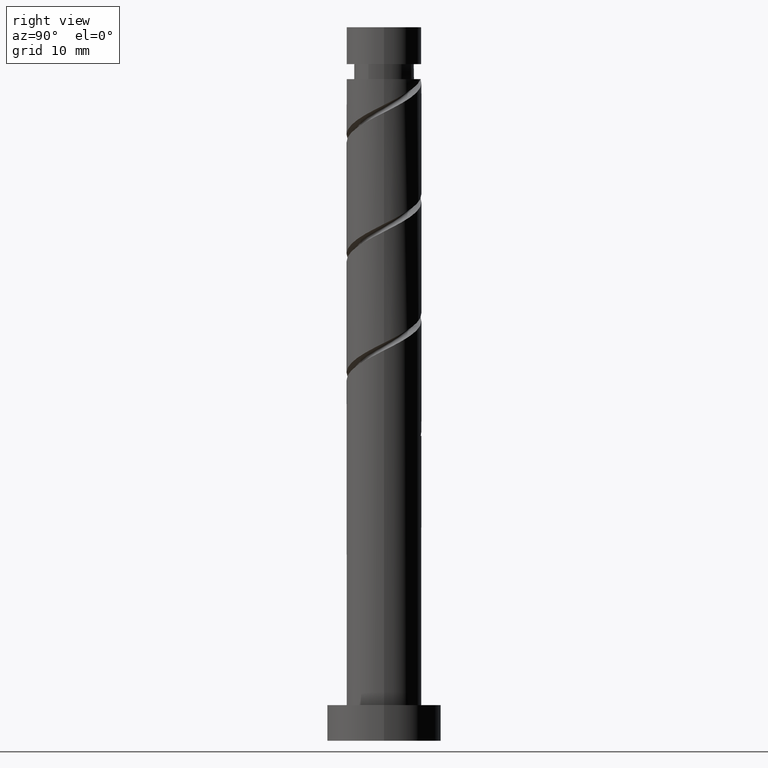
[diagram: clean part render]
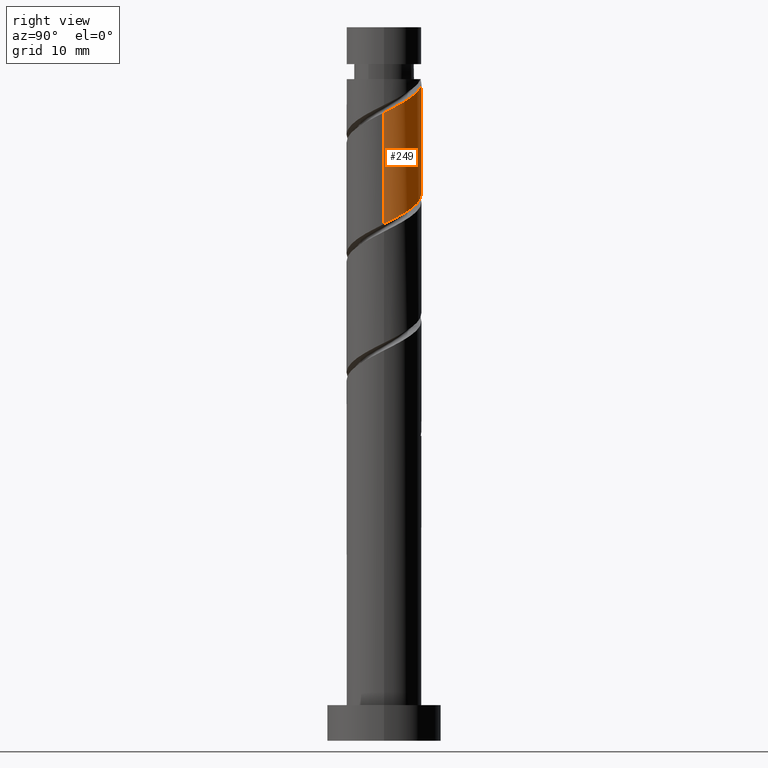
[diagram: same view with one face highlighted and labeled with its STEP entity id]
A machine part, right view. The second image highlights one B-rep face of the part: STEP entity #249.
In plain terms, the highlighted cylindrical surface (partial cylindrical patch) has radius 5.25 mm, axis along (-0, -0, -1).
Its self-contained STEP definition (entity closure, byte-faithful):
#27 = CARTESIAN_POINT ( 'NONE',  ( -5.250000000000000000, 0.000000000000000000, 100.0000000000000000 ) ) ;
#63 = AXIS2_PLACEMENT_3D ( 'NONE', #753, #978, #196 ) ;
#105 = CARTESIAN_POINT ( 'NONE',  ( 5.248252532265624382, 0.1354450352266066693, 88.10520114335645303 ) ) ;
#192 = EDGE_LOOP ( 'NONE', ( #432, #957, #760, #750, #459 ) ) ;
#196 = DIRECTION ( 'NONE',  ( -1.000000000000000000, 0.000000000000000000, 0.000000000000000000 ) ) ;
#198 = VERTEX_POINT ( 'NONE', #935 ) ;
#214 = CARTESIAN_POINT ( 'NONE',  ( -5.248252532265617276, 0.1354450352266073354, 80.69779373594903404 ) ) ;
#221 = VERTEX_POINT ( 'NONE', #712 ) ;
#245 = VERTEX_POINT ( 'NONE', #627 ) ;
#247 = CARTESIAN_POINT ( 'NONE',  ( 1.044736808961952423, 5.145000000000001350, 76.06816410631940073 ) ) ;
#249 = ADVANCED_FACE ( 'NONE', ( #929 ), #379, .T. ) ;
#259 = DIRECTION ( 'NONE',  ( -0.000000000000000000, -0.000000000000000000, -1.000000000000000000 ) ) ;
#285 = CARTESIAN_POINT ( 'NONE',  ( 5.250000000000000000, 6.429395695523604153E-16, 100.0000000000000000 ) ) ;
#291 =( BOUNDED_CURVE ( )  B_SPLINE_CURVE ( 2, ( #767, #328, #214, #1121, #563, #997, #441, #777, #1240, #1258, #1145, #1390, #247, #893, #595, #581, #444, #1299, #1185, #631, #515 ),
 .UNSPECIFIED., .F., .T. ) 
 B_SPLINE_CURVE_WITH_KNOTS ( ( 3, 2, 2, 2, 2, 2, 2, 2, 2, 2, 3 ),
 ( 0.4295248053855290626, 0.4305555555555555802, 0.4444444444444444198, 0.4583333333333333148, 0.4722222222222222099, 0.4861111111111111049, 0.5000000000000000000, 0.5138888888888888395, 0.5277777777777777901, 0.5416666666666666297, 0.5545248053855290626 ),
 .UNSPECIFIED. ) 
 CURVE ( )  GEOMETRIC_REPRESENTATION_ITEM ( )  RATIONAL_B_SPLINE_CURVE ( ( 0.9071930855141207006, 0.9080659294509683122, 0.9090909090909083945, 0.8952797754656429685, 0.9090909090909083945, 0.8952797754656429685, 0.9090909090909083945, 0.8952797754656429685, 0.9090909090909083945, 0.8952797754656429685, 0.9090909090909083945, 0.8952797754656429685, 0.9090909090909083945, 0.8952797754656429685, 0.9090909090909083945, 0.8952797754656429685, 0.9090909090909083945, 0.8952797754656429685, 0.9090909090909083945, 0.8963047551055830509, 0.9071930855141207006 ) ) 
 REPRESENTATION_ITEM ( '' )  );
#328 = CARTESIAN_POINT ( 'NONE',  ( -5.250000000000000888, 0.06773379024310967333, 80.73166828737579692 ) ) ;
#379 = CYLINDRICAL_SURFACE ( 'NONE', #1272, 5.250000000000000000 ) ;
#401 = EDGE_CURVE ( 'NONE', #1312, #1357, #1374, .T. ) ;
#432 = ORIENTED_EDGE ( 'NONE', *, *, #713, .F. ) ;
#437 = CARTESIAN_POINT ( 'NONE',  ( 1.693458827948110423, 5.054863847005282018, 91.34594188409721482 ) ) ;
#441 = CARTESIAN_POINT ( 'NONE',  ( -3.933332297989960757, 3.477268616829741088, 78.84594188409717219 ) ) ;
#444 = CARTESIAN_POINT ( 'NONE',  ( 4.107457078864401367, 3.269754783662944586, 74.21631225446756730 ) ) ;
#459 = ORIENTED_EDGE ( 'NONE', *, *, #401, .T. ) ;
#470 = CARTESIAN_POINT ( 'NONE',  ( 4.546468574307857224, 2.783716008602082681, 89.49409003224535297 ) ) ;
#493 = LINE ( 'NONE', #285, #675 ) ;
#515 = CARTESIAN_POINT ( 'NONE',  ( 5.250000000000001776, 6.722534946102204886E-17, 72.43235232797486844 ) ) ;
#563 = CARTESIAN_POINT ( 'NONE',  ( -4.885419246230004120, 1.922284783419320853, 79.77186781002311022 ) ) ;
#576 = CARTESIAN_POINT ( 'NONE',  ( 5.224369918152165226, 1.060853558236559024, 88.56816410631944336 ) ) ;
#581 = CARTESIAN_POINT ( 'NONE',  ( 3.530911090204056801, 3.994010288768715000, 74.67927521743055763 ) ) ;
#595 = CARTESIAN_POINT ( 'NONE',  ( 2.741425107455532029, 4.477397500804728203, 75.14223818039347691 ) ) ;
#627 = CARTESIAN_POINT ( 'NONE',  ( -5.250000000000000888, -2.674075011893987949E-15, 80.76568566130816862 ) ) ;
#631 = CARTESIAN_POINT ( 'NONE',  ( 5.250000000000000000, 0.8560354520573941750, 72.86227184034048321 ) ) ;
#675 = VECTOR ( 'NONE', #259, 1000.000000000000000 ) ;
#684 = EDGE_CURVE ( 'NONE', #221, #198, #493, .T. ) ;
#685 = CARTESIAN_POINT ( 'NONE',  ( 4.885419246230010337, 1.922284783419320631, 89.03112706928240527 ) ) ;
#690 =( BOUNDED_CURVE ( )  B_SPLINE_CURVE ( 2, ( #993, #781, #105, #576, #685, #470, #1146, #1480, #1242, #437, #1487, #1351, #763 ),
 .UNSPECIFIED., .F., .T. ) 
 B_SPLINE_CURVE_WITH_KNOTS ( ( 3, 2, 2, 2, 2, 2, 3 ),
 ( 0.6795248053855290626, 0.6805555555555555802, 0.6944444444444444198, 0.7083333333333332593, 0.7222222222222222099, 0.7361111111111111605, 0.7500000000000000000 ),
 .UNSPECIFIED. ) 
 CURVE ( )  GEOMETRIC_REPRESENTATION_ITEM ( )  RATIONAL_B_SPLINE_CURVE ( ( 0.9071930855141258077, 0.9080659294509735302, 0.9090909090909136125, 0.8952797754656481866, 0.9090909090909136125, 0.8952797754656481866, 0.9090909090909136125, 0.8952797754656481866, 0.9090909090909136125, 0.8952797754656481866, 0.9090909090909136125, 0.8952797754656481866, 0.9090909090909136125 ) ) 
 REPRESENTATION_ITEM ( '' )  );
#712 = CARTESIAN_POINT ( 'NONE',  ( 5.250000000000007105, 3.286572640316614447E-15, 88.03730921799733267 ) ) ;
#713 = EDGE_CURVE ( 'NONE', #221, #1357, #690, .T. ) ;
#719 = DIRECTION ( 'NONE',  ( -0.000000000000000000, -0.000000000000000000, -1.000000000000000000 ) ) ;
#728 = DIRECTION ( 'NONE',  ( -0.000000000000000000, -0.000000000000000000, -1.000000000000000000 ) ) ;
#750 = ORIENTED_EDGE ( 'NONE', *, *, #844, .F. ) ;
#753 = CARTESIAN_POINT ( 'NONE',  ( 0.000000000000000000, 0.000000000000000000, 92.73483077298610056 ) ) ;
#760 = ORIENTED_EDGE ( 'NONE', *, *, #1481, .F. ) ;
#763 = CARTESIAN_POINT ( 'NONE',  ( -1.044736808961951091, 5.145000000000009344, 92.73483077298611477 ) ) ;
#767 = CARTESIAN_POINT ( 'NONE',  ( -5.250000000000000888, -2.674075011893987949E-15, 80.76568566130816862 ) ) ;
#777 = CARTESIAN_POINT ( 'NONE',  ( -3.320196021672073616, 4.170821225057396830, 78.38297892113425291 ) ) ;
#781 = CARTESIAN_POINT ( 'NONE',  ( 5.250000000000007105, 0.06773379024310845209, 88.07132659192970436 ) ) ;
#844 = EDGE_CURVE ( 'NONE', #1312, #245, #1186, .T. ) ;
#893 = CARTESIAN_POINT ( 'NONE',  ( 1.951939124707003925, 4.960784712840743182, 75.60520114335648145 ) ) ;
#929 = FACE_OUTER_BOUND ( 'NONE', #192, .T. ) ;
#935 = CARTESIAN_POINT ( 'NONE',  ( 5.250000000000001776, 6.722534946102204886E-17, 72.43235232797486844 ) ) ;
#957 = ORIENTED_EDGE ( 'NONE', *, *, #684, .T. ) ;
#978 = DIRECTION ( 'NONE',  ( -0.000000000000000000, -0.000000000000000000, -1.000000000000000000 ) ) ;
#993 = CARTESIAN_POINT ( 'NONE',  ( 5.250000000000007105, 3.286572640316614447E-15, 88.03730921799733267 ) ) ;
#997 = CARTESIAN_POINT ( 'NONE',  ( -4.546468574307849231, 2.783716008602082237, 79.30890484706019095 ) ) ;
#1047 = CARTESIAN_POINT ( 'NONE',  ( 0.000000000000000000, 0.000000000000000000, 100.0000000000000000 ) ) ;
#1065 = DIRECTION ( 'NONE',  ( -1.000000000000000000, 0.000000000000000000, 0.000000000000000000 ) ) ;
#1074 = CARTESIAN_POINT ( 'NONE',  ( -5.250000000000000888, 0.000000000000000000, 92.73483077298610056 ) ) ;
#1077 = VECTOR ( 'NONE', #728, 1000.000000000000000 ) ;
#1121 = CARTESIAN_POINT ( 'NONE',  ( -5.224369918152159009, 1.060853558236559691, 80.23483077298611477 ) ) ;
#1145 = CARTESIAN_POINT ( 'NONE',  ( -0.7779621673656025305, 5.192039567082266771, 76.99409003224536718 ) ) ;
#1146 = CARTESIAN_POINT ( 'NONE',  ( 3.933332297989967419, 3.477268616829744197, 89.95705299520832909 ) ) ;
#1185 = CARTESIAN_POINT ( 'NONE',  ( 4.978069106951913625, 1.667731383170260484, 73.29038632854165769 ) ) ;
#1186 = LINE ( 'NONE', #27, #1077 ) ;
#1240 = CARTESIAN_POINT ( 'NONE',  ( -2.506827424810088800, 4.612842536031337204, 77.92001595817129100 ) ) ;
#1242 = CARTESIAN_POINT ( 'NONE',  ( 2.506827424810094129, 4.612842536031341645, 90.88297892113423870 ) ) ;
#1258 = CARTESIAN_POINT ( 'NONE',  ( -1.693458827948103762, 5.054863847005278465, 77.45705299520828646 ) ) ;
#1272 = AXIS2_PLACEMENT_3D ( 'NONE', #1047, #719, #1065 ) ;
#1299 = CARTESIAN_POINT ( 'NONE',  ( 4.684003067524750819, 2.545499278557176392, 73.75334929150463381 ) ) ;
#1312 = VERTEX_POINT ( 'NONE', #1074 ) ;
#1351 = CARTESIAN_POINT ( 'NONE',  ( -0.1375344932168983403, 5.329215287159264847, 92.27186781002315286 ) ) ;
#1357 = VERTEX_POINT ( 'NONE', #1360 ) ;
#1360 = CARTESIAN_POINT ( 'NONE',  ( -1.044736808961951091, 5.145000000000009344, 92.73483077298611477 ) ) ;
#1374 = CIRCLE ( 'NONE', #63, 5.250000000000000888 ) ;
#1390 = CARTESIAN_POINT ( 'NONE',  ( 0.1375344932168990342, 5.329215287159257741, 76.53112706928240527 ) ) ;
#1480 = CARTESIAN_POINT ( 'NONE',  ( 3.320196021672078501, 4.170821225057403048, 90.42001595817127679 ) ) ;
#1481 = EDGE_CURVE ( 'NONE', #245, #198, #291, .T. ) ;
#1487 = CARTESIAN_POINT ( 'NONE',  ( 0.7779621673656081926, 5.192039567082272988, 91.80890484706013410 ) ) ;